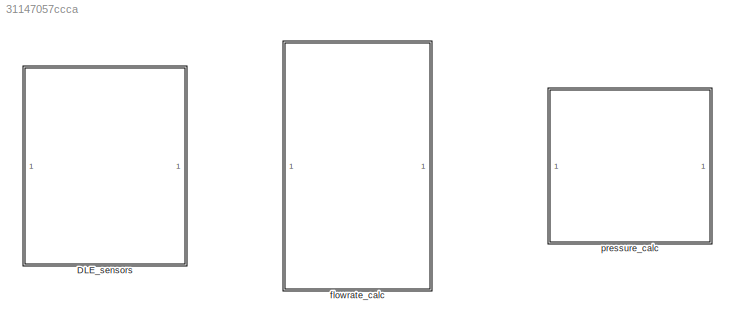
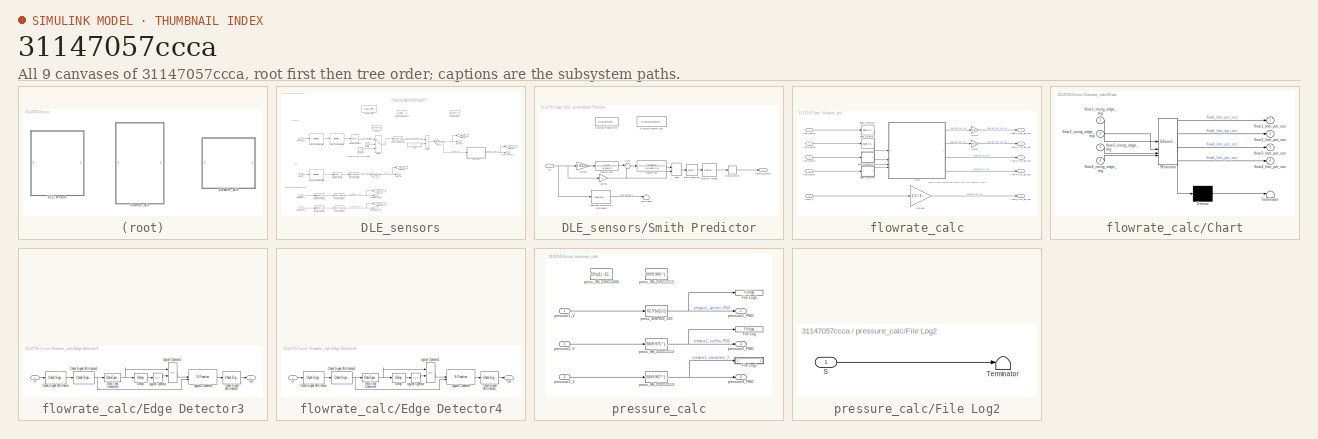
[diagram: thumbnail index - all 9 canvases of the model, root first then tree order]
MODEL slx_31147057ccca
KIND library
CONFIG AbsTol = auto
CONFIG EnableMultiTasking = off
CONFIG FixedStep = auto
CONFIG MaxStep = auto
CONFIG MinStep = auto
CONFIG RelTol = 1e-3
CONFIG SampleTimeConstraint = Unconstrained
CONFIG SolverName = VariableStepAuto
CONFIG StartTime = 0.0
CONFIG StopTime = 10.0
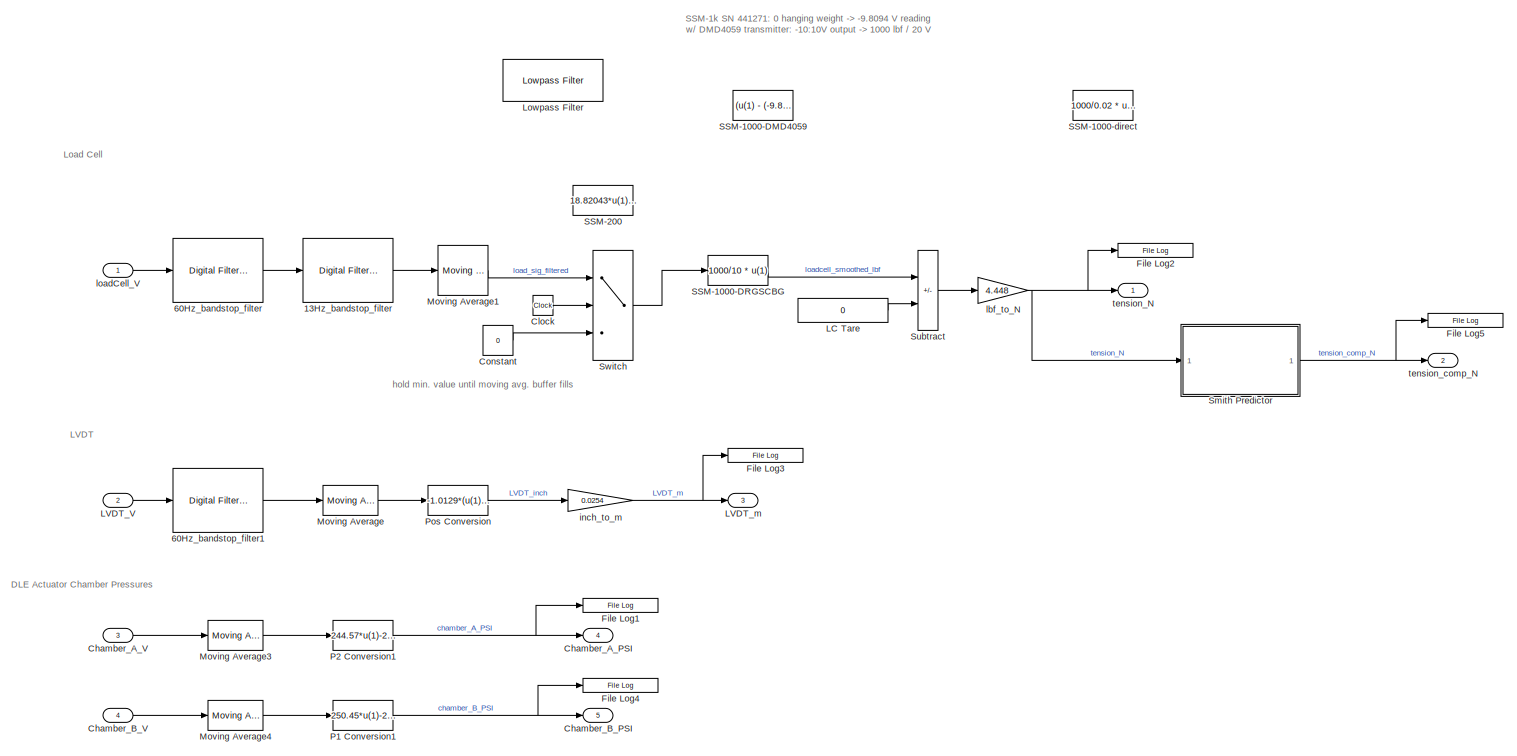
[diagram: DLE_sensors - part 1/1, most of the canvas]
BLOCK [SubSystem] DLE_sensors
BLOCK [Reference] DLE_sensors/13Hz_bandstop_filter  REF=dspfdesign/Digital
Filter Design
  Commented = through
  SourceBlock = dspfdesign/Digital\nFilter Design
  SourceType = Digital Filter Design
  UserDataPersistent = on
BLOCK [Reference] DLE_sensors/60Hz_bandstop_filter  REF=dspfdesign/Digital
Filter Design
  SourceBlock = dspfdesign/Digital\nFilter Design
  SourceType = Digital Filter Design
  UserDataPersistent = on
BLOCK [Reference] DLE_sensors/60Hz_bandstop_filter1  REF=dspfdesign/Digital
Filter Design
  SourceBlock = dspfdesign/Digital\nFilter Design
  SourceType = Digital Filter Design
  UserDataPersistent = on
BLOCK [Outport] DLE_sensors/Chamber_A_PSI 
  Port = 4
  VectorParamsAs1DForOutWhenUnconnected = off
BLOCK [Inport] DLE_sensors/Chamber_A_V
  Port = 3
BLOCK [Outport] DLE_sensors/Chamber_B_PSI 
  Port = 5
  VectorParamsAs1DForOutWhenUnconnected = off
BLOCK [Inport] DLE_sensors/Chamber_B_V
  Port = 4
BLOCK [Clock] DLE_sensors/Clock
BLOCK [Constant] DLE_sensors/Constant
  Value = 0
BLOCK [Reference] DLE_sensors/File Log1  REF=slrealtimeloglib/File Log
  SourceBlock = slrealtimeloglib/File Log
  SourceType = slrealtimeloggingblock
BLOCK [Reference] DLE_sensors/File Log2  REF=slrealtimeloglib/File Log
  SourceBlock = slrealtimeloglib/File Log
  SourceType = slrealtimeloggingblock
BLOCK [Reference] DLE_sensors/File Log3  REF=slrealtimeloglib/File Log
  SourceBlock = slrealtimeloglib/File Log
  SourceType = slrealtimeloggingblock
BLOCK [Reference] DLE_sensors/File Log4  REF=slrealtimeloglib/File Log
  SourceBlock = slrealtimeloglib/File Log
  SourceType = slrealtimeloggingblock
BLOCK [Reference] DLE_sensors/File Log5  REF=slrealtimeloglib/File Log
  SourceBlock = slrealtimeloglib/File Log
  SourceType = slrealtimeloggingblock
BLOCK [Constant] DLE_sensors/LC Tare
  Value = 0
BLOCK [Inport] DLE_sensors/LVDT_V
  Port = 2
BLOCK [Outport] DLE_sensors/LVDT_m
  Port = 3
BLOCK [Reference] DLE_sensors/Lowpass Filter  REF=dspfdesign/Lowpass Filter
  Commented = on
  SourceBlock = dspfdesign/Lowpass Filter
  SourceType = dsp.simulink.LowpassFilter
BLOCK [Reference] DLE_sensors/Moving Average  REF=dspstat3/Moving
Average
  SourceBlock = dspstat3/Moving\nAverage
  SourceType = dsp.simulink.MovingAverage
BLOCK [Reference] DLE_sensors/Moving Average1  REF=dspstat3/Moving
Average
  SourceBlock = dspstat3/Moving\nAverage
  SourceType = dsp.simulink.MovingAverage
BLOCK [Reference] DLE_sensors/Moving Average3  REF=dspstat3/Moving
Average
  SourceBlock = dspstat3/Moving\nAverage
  SourceType = dsp.simulink.MovingAverage
BLOCK [Reference] DLE_sensors/Moving Average4  REF=dspstat3/Moving
Average
  SourceBlock = dspstat3/Moving\nAverage
  SourceType = dsp.simulink.MovingAverage
BLOCK [Fcn] DLE_sensors/P1 Conversion1
  Expr = 250.45*u(1)-245.36 - 10.5
BLOCK [Fcn] DLE_sensors/P2 Conversion1
  Expr = 244.57*u(1)-244.02
BLOCK [Fcn] DLE_sensors/Pos Conversion
  Expr = -1.0129*(u(1)-2.003)+3.64
BLOCK [Fcn] DLE_sensors/SSM-1000-DMD4059
  Commented = on
  Expr = (u(1) - (-9.8094)) * 1000 / 20
BLOCK [Fcn] DLE_sensors/SSM-1000-DRGSCBG
  Expr = 1000/10 * u(1)
BLOCK [Fcn] DLE_sensors/SSM-1000-direct
  Commented = on
  Expr = 1000/0.02 * u(1)
BLOCK [Fcn] DLE_sensors/SSM-200
  Commented = on
  Expr = 18.82043*u(1)+1.45249
BLOCK [SubSystem] DLE_sensors/Smith Predictor
BLOCK [Sum] DLE_sensors/Smith Predictor/Add2
  IconShape = rectangular
BLOCK [DiscreteTransferFcn] DLE_sensors/Smith Predictor/Discrete Transfer Fcn
  Commented = on
  Denominator = [0.0005 1]
  InputPortMap = u0
  Numerator = [1 0]
BLOCK [DiscreteTransferFcn] DLE_sensors/Smith Predictor/Discrete Transfer Fcn1
  Commented = on
  Denominator = [(0.0325)/2 1]
  InputPortMap = u0
  Numerator = [0.0325 0]
BLOCK [Gain] DLE_sensors/Smith Predictor/Gain15
  Gain = 0.0325
BLOCK [Gain] DLE_sensors/Smith Predictor/Gain16
BLOCK [Inport] DLE_sensors/Smith Predictor/In1
BLOCK [Reference] DLE_sensors/Smith Predictor/Lead-Lag (Discrete or Continuous)  REF=eeGeneralControl/Lead-Lag
(Discrete or Continuous)
  Commented = on
  LibrarySourceBlock = ee_sl_lib/General Control/Lead-Lag\n(Discrete or Continuous)
  SourceBlock = eeGeneralControl/Lead-Lag\n(Discrete or Continuous)
  SourceType = Lead-Lag (Discrete or Continuous)
BLOCK [Reference] DLE_sensors/Smith Predictor/Moving Average  REF=dspstat3/Moving
Average
  Commented = through
  SourceBlock = dspstat3/Moving\nAverage
  SourceType = dsp.simulink.MovingAverage
BLOCK [RateLimiter] DLE_sensors/Smith Predictor/Rate Limiter
  Commented = through
  FallingSlewLimit = -4e3
  RisingSlewLimit = 4e3
  SampleTimeMode = inherited
BLOCK [RateTransition] DLE_sensors/Smith Predictor/Rate Transition
  OutPortSampleTime = 0.0001
BLOCK [Sum] DLE_sensors/Smith Predictor/Sum
  Inputs = |++
BLOCK [Terminator] DLE_sensors/Smith Predictor/Terminator
  Commented = on
BLOCK [TransferFcn] DLE_sensors/Smith Predictor/Transfer Fcn
  Denominator = [(0.0325)/2 1]
  Numerator = [0.0325 0]
BLOCK [TransferFcn] DLE_sensors/Smith Predictor/Transfer Fcn1
  Denominator = [0.0005 1]
  Numerator = [1 0]
BLOCK [Outport] DLE_sensors/Smith Predictor/tension_comp_N
BLOCK [Sum] DLE_sensors/Subtract
  IconShape = rectangular
  Inputs = +-
BLOCK [Switch] DLE_sensors/Switch
  Criteria = u2 > Threshold
  InputSameDT = off
  SaturateOnIntegerOverflow = off
  Threshold = 150 * 0.0001
BLOCK [Gain] DLE_sensors/inch_to_m
  Gain = 0.0254
BLOCK [Gain] DLE_sensors/lbf_to_N
  Gain = 4.448
BLOCK [Inport] DLE_sensors/loadCell_V
BLOCK [Outport] DLE_sensors/tension_N
BLOCK [Outport] DLE_sensors/tension_comp_N
  Port = 2
BLOCK [SubSystem] flowrate_calc
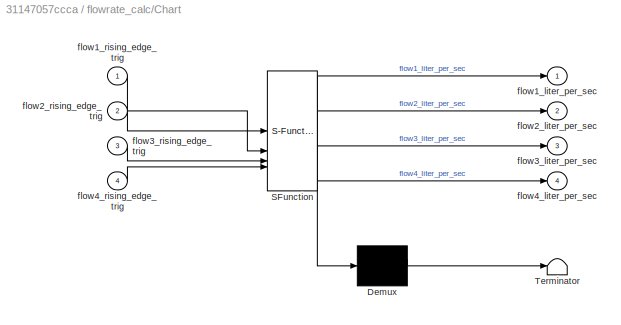
BLOCK [SubSystem] flowrate_calc/Chart
  ErrorFcn = Stateflow.Translate.translate
  PermitHierarchicalResolution = ExplicitOnly
  SFBlockType = Chart
  TreatAsAtomicUnit = on
BLOCK [Demux] flowrate_calc/Chart/ Demux 
  Outputs = 1
BLOCK [S-Function] flowrate_calc/Chart/ SFunction 
  EnableBusSupport = off
  FunctionName = sf_sfun
  PortCounts = [4 5]
  SFcnIsStateOwnerBlock = off
  SFunctionDeploymentMode = off
  Tag = Stateflow S-Function 3
BLOCK [Terminator] flowrate_calc/Chart/ Terminator 
BLOCK [Outport] flowrate_calc/Chart/flow1_liter_per_sec
BLOCK [Inport] flowrate_calc/Chart/flow1_rising_edge_trig
BLOCK [Outport] flowrate_calc/Chart/flow2_liter_per_sec
  Port = 2
BLOCK [Inport] flowrate_calc/Chart/flow2_rising_edge_trig
  Port = 2
BLOCK [Outport] flowrate_calc/Chart/flow3_liter_per_sec
  Port = 3
BLOCK [Inport] flowrate_calc/Chart/flow3_rising_edge_trig
  Port = 3
BLOCK [Outport] flowrate_calc/Chart/flow4_liter_per_sec
  Port = 4
BLOCK [Inport] flowrate_calc/Chart/flow4_rising_edge_trig
  Port = 4
BLOCK [Reference] flowrate_calc/Edge Detector1  REF=dspswit3/Edge
Detector
  SourceBlock = dspswit3/Edge\nDetector
  SourceType = Edge Detector
  UserDataPersistent = on
BLOCK [Reference] flowrate_calc/Edge Detector2  REF=dspswit3/Edge
Detector
  SourceBlock = dspswit3/Edge\nDetector
  SourceType = Edge Detector
  UserDataPersistent = on
BLOCK [SubSystem] flowrate_calc/Edge Detector3
  UserDataPersistent = on
BLOCK [Reference] flowrate_calc/Edge Detector3/Check Signal Attributes  REF=dspsigattribs/Check Signal
Attributes
  SourceBlock = dspsigattribs/Check Signal\nAttributes
  SourceType = Check Signal Attributes
BLOCK [Reference] flowrate_calc/Edge Detector3/Check Signal Attributes1  REF=dspsigattribs/Check Signal
Attributes
  SourceBlock = dspsigattribs/Check Signal\nAttributes
  SourceType = Check Signal Attributes
BLOCK [Reference] flowrate_calc/Edge Detector3/Check Signal Attributes2  REF=dspsigattribs/Check Signal
Attributes
  SourceBlock = dspsigattribs/Check Signal\nAttributes
  SourceType = Check Signal Attributes
BLOCK [DataTypeConversion] flowrate_calc/Edge Detector3/Data Type Conversion
  OutDataTypeStr = boolean
BLOCK [Delay] flowrate_calc/Edge Detector3/Delay
  DelayLength = 1
  InitialCondition = 1
  InputPortMap = u0
  InputProcessing = Columns as channels (frame based)
  UserDataPersistent = on
BLOCK [Inport] flowrate_calc/Edge Detector3/In
BLOCK [S-Function] flowrate_calc/Edge Detector3/Logical Converter
  EnableBusSupport = off
  FunctionName = sdspboolconv
  SFcnIsStateOwnerBlock = off
  SFunctionDeploymentMode = off
BLOCK [Logic] flowrate_calc/Edge Detector3/Logical Operator
  Inputs = 1
  Operator = NOT
BLOCK [Logic] flowrate_calc/Edge Detector3/Logical Operator1
BLOCK [Outport] flowrate_calc/Edge Detector3/Out
  InitialOutput = 0
BLOCK [SubSystem] flowrate_calc/Edge Detector4
  UserDataPersistent = on
BLOCK [Reference] flowrate_calc/Edge Detector4/Check Signal Attributes  REF=dspsigattribs/Check Signal
Attributes
  SourceBlock = dspsigattribs/Check Signal\nAttributes
  SourceType = Check Signal Attributes
BLOCK [Reference] flowrate_calc/Edge Detector4/Check Signal Attributes1  REF=dspsigattribs/Check Signal
Attributes
  SourceBlock = dspsigattribs/Check Signal\nAttributes
  SourceType = Check Signal Attributes
BLOCK [Reference] flowrate_calc/Edge Detector4/Check Signal Attributes2  REF=dspsigattribs/Check Signal
Attributes
  SourceBlock = dspsigattribs/Check Signal\nAttributes
  SourceType = Check Signal Attributes
BLOCK [DataTypeConversion] flowrate_calc/Edge Detector4/Data Type Conversion
  OutDataTypeStr = boolean
BLOCK [Delay] flowrate_calc/Edge Detector4/Delay
  DelayLength = 1
  InitialCondition = 1
  InputPortMap = u0
  InputProcessing = Columns as channels (frame based)
  UserDataPersistent = on
BLOCK [Inport] flowrate_calc/Edge Detector4/In
BLOCK [S-Function] flowrate_calc/Edge Detector4/Logical Converter
  EnableBusSupport = off
  FunctionName = sdspboolconv
  SFcnIsStateOwnerBlock = off
  SFunctionDeploymentMode = off
BLOCK [Logic] flowrate_calc/Edge Detector4/Logical Operator
  Inputs = 1
  Operator = NOT
BLOCK [Logic] flowrate_calc/Edge Detector4/Logical Operator1
BLOCK [Outport] flowrate_calc/Edge Detector4/Out
  InitialOutput = 0
BLOCK [Gain] flowrate_calc/FLR1008
  Gain = 0.2 / 60 / 5
BLOCK [Gain] flowrate_calc/Gain1
  Gain = 0.8827
BLOCK [Gain] flowrate_calc/Gain2
  Gain = 0.8523
BLOCK [Outport] flowrate_calc/flow1_liter_per_sec
BLOCK [Inport] flowrate_calc/flow1_pulse
BLOCK [Outport] flowrate_calc/flow2_liter_per_sec
  Port = 2
BLOCK [Inport] flowrate_calc/flow2_pulse
  Port = 2
BLOCK [Outport] flowrate_calc/flow3_liter_per_sec
  Port = 3
BLOCK [Inport] flowrate_calc/flow3_pulse
  Port = 3
BLOCK [Outport] flowrate_calc/flow4_liter_per_sec
  Port = 4
BLOCK [Inport] flowrate_calc/flow4_pulse
  Port = 4
BLOCK [Inport] flowrate_calc/flow5_V
  Port = 5
BLOCK [Outport] flowrate_calc/flow5_liter_per_sec
  Port = 5
BLOCK [SubSystem] pressure_calc
BLOCK [Reference] pressure_calc/File Log  REF=slrealtimeloglib/File Log
  SourceBlock = slrealtimeloglib/File Log
  SourceType = slrealtimeloggingblock
BLOCK [Reference] pressure_calc/File Log1  REF=slrealtimeloglib/File Log
  SourceBlock = slrealtimeloglib/File Log
  SourceType = slrealtimeloggingblock
BLOCK [SubSystem] pressure_calc/File Log2
  MaskHideContents = on
BLOCK [Inport] pressure_calc/File Log2/S
BLOCK [Terminator] pressure_calc/File Log2/Terminator
BLOCK [Fcn] pressure_calc/press_MSP300_250
  Expr = 62.5*(u(1)-1)
BLOCK [Fcn] pressure_calc/press_SN_230612406
  Commented = on
  Expr = 33*u(1) - 15.11
BLOCK [Fcn] pressure_calc/press_SN_250212112
  Commented = on
  Expr = 200/9.960 * (u-0.012)
BLOCK [Fcn] pressure_calc/press_SN_250212113
  Expr = 200/9.967 * (u-0.011)
BLOCK [Fcn] pressure_calc/press_SN_250212114
  Expr = 200/9.975 * (u-0.006)
BLOCK [Outport] pressure_calc/pressure1_PSIG
BLOCK [Inport] pressure_calc/pressure1_V
BLOCK [Outport] pressure_calc/pressure2_PSIG
  Port = 2
BLOCK [Inport] pressure_calc/pressure2_V
  Port = 2
BLOCK [Outport] pressure_calc/pressure3_PSIG
  Port = 3
BLOCK [Inport] pressure_calc/pressure3_V
  Port = 3
ANNOTATION DLE_sensors: DLE Actuator Chamber Pressures
ANNOTATION DLE_sensors: LVDT
ANNOTATION DLE_sensors: Load Cell
ANNOTATION DLE_sensors: SSM-1k SN 441271: 0 hanging weight -> -9.8094 V reading w/ DMD4059 transmitter: -10:10V output -> 1000 lbf / 20 V
ANNOTATION DLE_sensors: hold min. value until moving avg. buffer fills
ANNOTATION flowrate_calc: need to check correction factors for flow sensors 3 and 4
LINE DLE_sensors/13Hz_bandstop_filter:1 -> DLE_sensors/Moving Average1:1
LINE DLE_sensors/60Hz_bandstop_filter1:1 -> DLE_sensors/Moving Average:1
LINE DLE_sensors/60Hz_bandstop_filter:1 -> DLE_sensors/13Hz_bandstop_filter:1
LINE DLE_sensors/Chamber_A_V:1 -> DLE_sensors/Moving Average3:1
LINE DLE_sensors/Chamber_B_V:1 -> DLE_sensors/Moving Average4:1
LINE DLE_sensors/Clock:1 -> DLE_sensors/Switch:2
LINE DLE_sensors/Constant:1 -> DLE_sensors/Switch:3
LINE DLE_sensors/LC Tare:1 -> DLE_sensors/Subtract:2
LINE DLE_sensors/LVDT_V:1 -> DLE_sensors/60Hz_bandstop_filter1:1
LINE DLE_sensors/Moving Average1:1 -> DLE_sensors/Switch:1
LINE DLE_sensors/Moving Average3:1 -> DLE_sensors/P2 Conversion1:1
LINE DLE_sensors/Moving Average4:1 -> DLE_sensors/P1 Conversion1:1
LINE DLE_sensors/Moving Average:1 -> DLE_sensors/Pos Conversion:1
NET DLE_sensors/P1 Conversion1:1 -> DLE_sensors/Chamber_B_PSI :1, DLE_sensors/File Log4:1
NET DLE_sensors/P2 Conversion1:1 -> DLE_sensors/Chamber_A_PSI :1, DLE_sensors/File Log1:1
LINE DLE_sensors/Pos Conversion:1 -> DLE_sensors/inch_to_m:1
LINE DLE_sensors/SSM-1000-DRGSCBG:1 -> DLE_sensors/Subtract:1
LINE DLE_sensors/Smith Predictor/Add2:1 -> DLE_sensors/Smith Predictor/Rate Transition:1
LINE DLE_sensors/Smith Predictor/Gain15:1 -> DLE_sensors/Smith Predictor/Transfer Fcn1:1
NET DLE_sensors/Smith Predictor/Gain16:1 -> DLE_sensors/Smith Predictor/Add2:2, DLE_sensors/Smith Predictor/Sum:2
NET DLE_sensors/Smith Predictor/In1:1 -> DLE_sensors/Smith Predictor/Gain15:1, DLE_sensors/Smith Predictor/Gain16:1, DLE_sensors/Smith Predictor/Lead-Lag (Discrete or Continuous):1
LINE DLE_sensors/Smith Predictor/Lead-Lag (Discrete or Continuous):1 -> DLE_sensors/Smith Predictor/Terminator:1
LINE DLE_sensors/Smith Predictor/Moving Average:1 -> DLE_sensors/Smith Predictor/Rate Limiter:1
LINE DLE_sensors/Smith Predictor/Rate Limiter:1 -> DLE_sensors/Smith Predictor/tension_comp_N:1
LINE DLE_sensors/Smith Predictor/Rate Transition:1 -> DLE_sensors/Smith Predictor/Moving Average:1
LINE DLE_sensors/Smith Predictor/Sum:1 -> DLE_sensors/Smith Predictor/Transfer Fcn:1
LINE DLE_sensors/Smith Predictor/Transfer Fcn1:1 -> DLE_sensors/Smith Predictor/Sum:1
LINE DLE_sensors/Smith Predictor/Transfer Fcn:1 -> DLE_sensors/Smith Predictor/Add2:1
NET DLE_sensors/Smith Predictor:1 -> DLE_sensors/File Log5:1, DLE_sensors/tension_comp_N:1
LINE DLE_sensors/Subtract:1 -> DLE_sensors/lbf_to_N:1
LINE DLE_sensors/Switch:1 -> DLE_sensors/SSM-1000-DRGSCBG:1
NET DLE_sensors/inch_to_m:1 -> DLE_sensors/File Log3:1, DLE_sensors/LVDT_m:1
NET DLE_sensors/lbf_to_N:1 -> DLE_sensors/File Log2:1, DLE_sensors/Smith Predictor:1, DLE_sensors/tension_N:1
LINE DLE_sensors/loadCell_V:1 -> DLE_sensors/60Hz_bandstop_filter:1
LINE flowrate_calc/Chart:1 -> flowrate_calc/Gain1:1
LINE flowrate_calc/Chart:2 -> flowrate_calc/Gain2:1
LINE flowrate_calc/Chart:3 -> flowrate_calc/flow3_liter_per_sec:1
LINE flowrate_calc/Chart:4 -> flowrate_calc/flow4_liter_per_sec:1
LINE flowrate_calc/Edge Detector1:1 -> flowrate_calc/Chart:2
LINE flowrate_calc/Edge Detector2:1 -> flowrate_calc/Chart:1
LINE flowrate_calc/Edge Detector3:1 -> flowrate_calc/Chart:3
LINE flowrate_calc/Edge Detector4:1 -> flowrate_calc/Chart:4
LINE flowrate_calc/FLR1008:1 -> flowrate_calc/flow5_liter_per_sec:1
LINE flowrate_calc/Gain1:1 -> flowrate_calc/flow1_liter_per_sec:1
LINE flowrate_calc/Gain2:1 -> flowrate_calc/flow2_liter_per_sec:1
LINE flowrate_calc/flow1_pulse:1 -> flowrate_calc/Edge Detector2:1
LINE flowrate_calc/flow2_pulse:1 -> flowrate_calc/Edge Detector1:1
LINE flowrate_calc/flow3_pulse:1 -> flowrate_calc/Edge Detector3:1
LINE flowrate_calc/flow4_pulse:1 -> flowrate_calc/Edge Detector4:1
LINE flowrate_calc/flow5_V:1 -> flowrate_calc/FLR1008:1
NET pressure_calc/press_MSP300_250:1 -> pressure_calc/File Log1:1, pressure_calc/pressure1_PSIG:1
NET pressure_calc/press_SN_250212113:1 -> pressure_calc/File Log2:1, pressure_calc/pressure3_PSIG:1
NET pressure_calc/press_SN_250212114:1 -> pressure_calc/File Log:1, pressure_calc/pressure2_PSIG:1
LINE pressure_calc/pressure1_V:1 -> pressure_calc/press_MSP300_250:1
LINE pressure_calc/pressure2_V:1 -> pressure_calc/press_SN_250212114:1
LINE pressure_calc/pressure3_V:1 -> pressure_calc/press_SN_250212113:1
note: NET lines group one-source signal fan-out (src -> all destinations, sorted); 1:1 wires keep LINE
CHART flowrate_calc/Chart states=12 transitions=32
  STATE_LABEL 'flow1'
  STATE_LABEL 'wait1\nen:\n flow1_period = t - flow1_timestamp;\n flow1_liter_per_sec = 1 / (flow1_period * ft110_pulse_per_liter);\n flow1_timestamp = t;'
  STATE_LABEL 'sensor1_idle\nen:\n flow1_liter_per_sec = 0;'
  STATE_LABEL '[after(1.2*flow1_period, sec)]'
  STATE_LABEL '[flow1_rising_edge_trig]'
  STATE_LABEL '[flow1_rising_edge_trig]'
  STATE_LABEL 'wait1\nen:\n flow1_period = t - flow1_timestamp;\n flow1_liter_per_sec = 1 / (flow1_period * ft110_pulse_per_liter);\n flow1_timestamp = t;'
  STATE_LABEL 'sensor1_idle\nen:\n flow1_liter_per_sec = 0;'
  STATE_LABEL 'flow2'
  STATE_LABEL 'wait2\nen:\n flow2_period = t - flow2_timestamp;\n flow2_liter_per_sec = 1 / (flow2_period * ft110_pulse_per_liter);\n flow2_timestamp = t;'
  STATE_LABEL 'sensor2_idle\nen:\n flow2_liter_per_sec = 0;'
  STATE_LABEL '[after(1.2*flow2_period, sec)]'
  STATE_LABEL '[flow2_rising_edge_trig]'
  STATE_LABEL '[flow2_rising_edge_trig]'
  STATE_LABEL 'wait2\nen:\n flow2_period = t - flow2_timestamp;\n flow2_liter_per_sec = 1 / (flow2_period * ft110_pulse_per_liter);\n flow2_timestamp = t;'
  STATE_LABEL 'sensor2_idle\nen:\n flow2_liter_per_sec = 0;'
  STATE_LABEL 'flow3'
  STATE_LABEL 'wait3\nen:\n flow3_period = t - flow3_timestamp;\n flow3_liter_per_sec = 1 / (flow3_period * ft110_pulse_per_liter);\n flow3_timestamp = t;'
  STATE_LABEL 'sensor3_idle\nen:\n flow3_liter_per_sec = 0;'
  STATE_LABEL '[after(1.2*flow3_period, sec)]'
  STATE_LABEL '[flow3_rising_edge_trig]'
  STATE_LABEL '[flow3_rising_edge_trig]'
  STATE_LABEL 'wait3\nen:\n flow3_period = t - flow3_timestamp;\n flow3_liter_per_sec = 1 / (flow3_period * ft110_pulse_per_liter);\n flow3_timestamp = t;'
  STATE_LABEL 'sensor3_idle\nen:\n flow3_liter_per_sec = 0;'
  STATE_LABEL 'flow4'
  STATE_LABEL 'wait4\nen:\n flow4_period = t - flow4_timestamp;\n flow4_liter_per_sec = 1 / (flow4_period * ft210_pulse_per_liter);\n flow4_timestamp = t;'
  STATE_LABEL 'sensor4_idle\nen:\n flow4_liter_per_sec = 0;'
  STATE_LABEL '[after(1.2*flow4_period, sec)]'
  STATE_LABEL '[flow4_rising_edge_trig]'
  STATE_LABEL '[flow4_rising_edge_trig]'
  STATE_LABEL 'wait4\nen:\n flow4_period = t - flow4_timestamp;\n flow4_liter_per_sec = 1 / (flow4_period * ft210_pulse_per_liter);\n flow4_timestamp = t;'
  STATE_LABEL 'sensor4_idle\nen:\n flow4_liter_per_sec = 0;'
CHART  states=0 transitions=0
